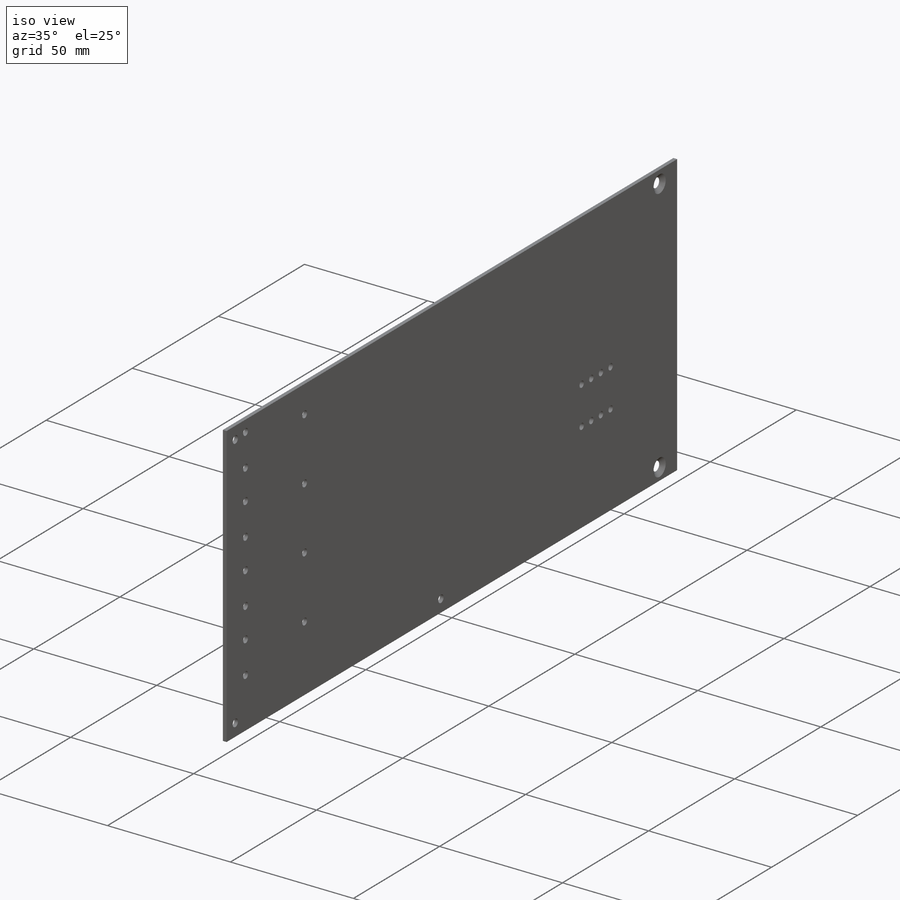
[diagram: iso view]
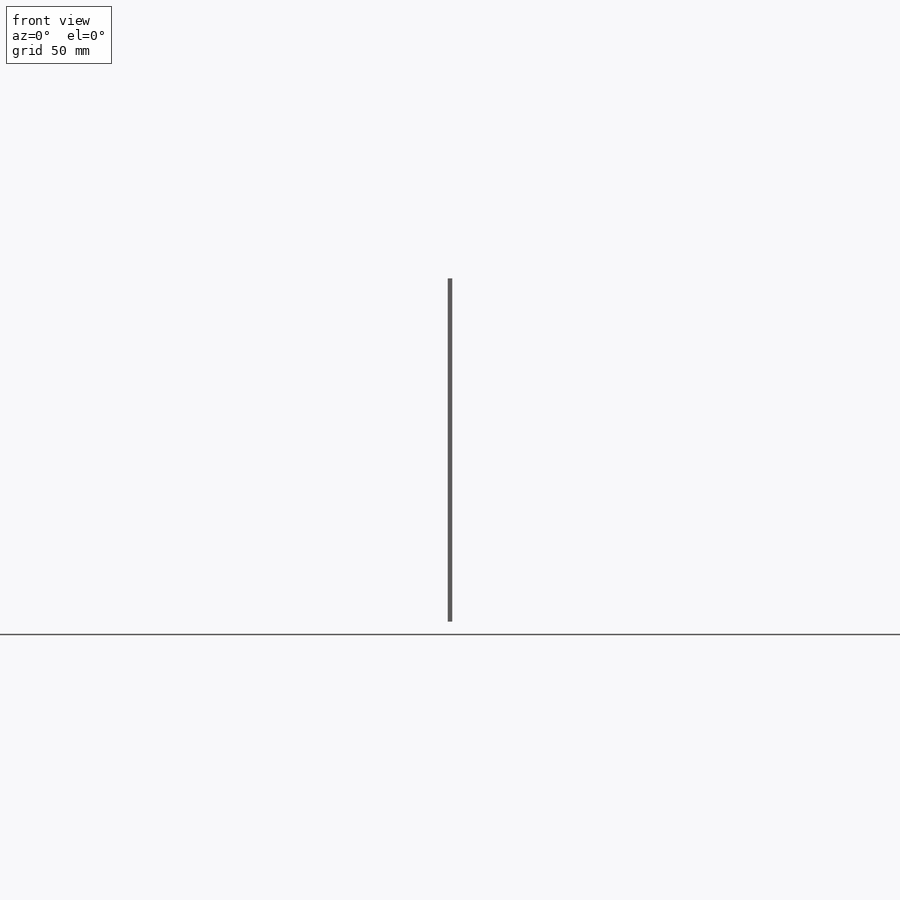
[diagram: front view]
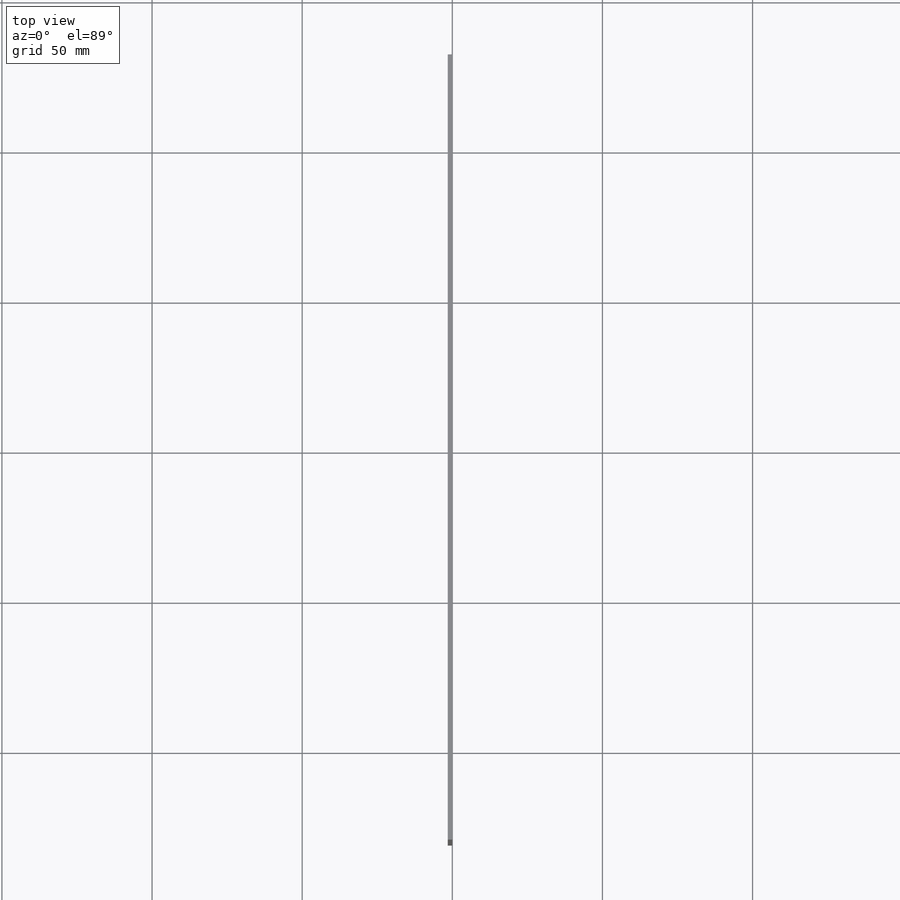
[diagram: top view]
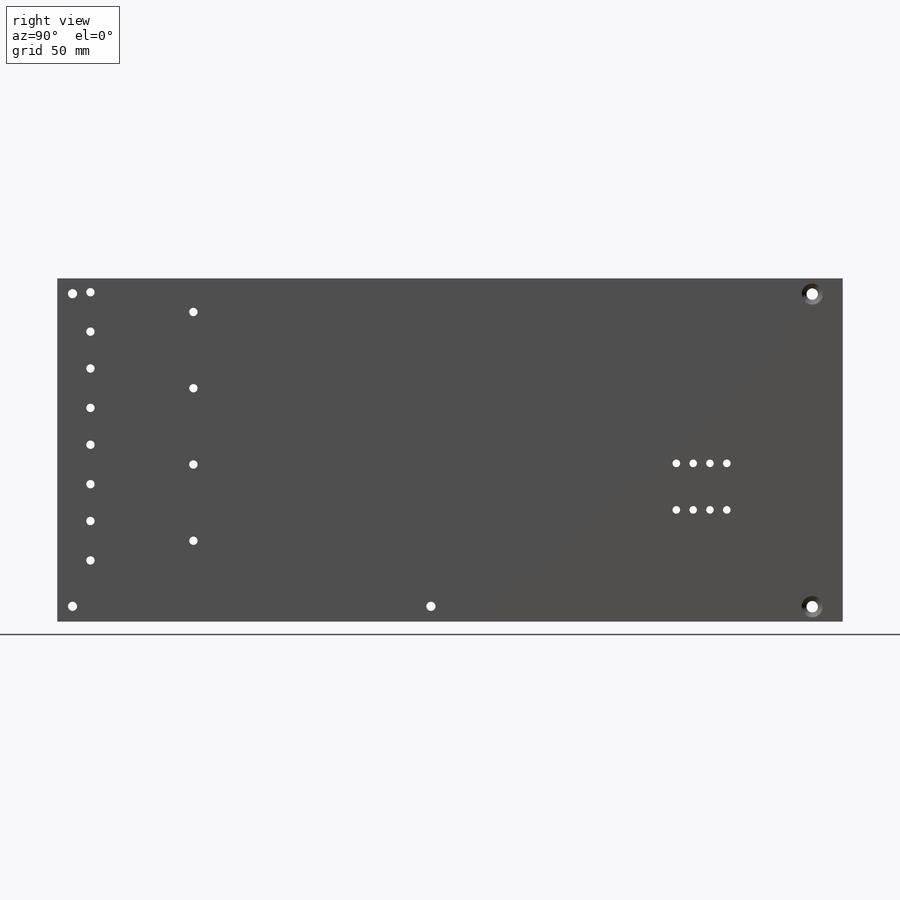
[diagram: right view]
SOLIDWORKS PART (.sldprt)
format: sldprt  version: not decoded by parser v0  size: 1,134,592 bytes
history: native  units: mm
features: sketch x11, hole x4, material x1, extrude x1, plane x1 (+11 scaffold rows collapsed)
feature tree (29):
  scaffold x11  (default folders/planes/origin — collapsed)
  material  "Material <not specified>"
  sketch  "Sketch1"  dims[D1=114.3mm D2=57.15mm D3=1.524mm]
  extrude  "Boss-Extrude1"  Depth=261.62mm
  plane  "Plane1"  Offset=57.15mm
  sketch  "from pixel-mtbd-v2_100512.dxf"
  sketch  "Sketch2"  dims[D1=104.14mm D2=10.16mm D3=0.127mm]
  hole  "CSK for #6 Flat Head Machine Screw (100)1"  Diameter=3.7973mm Depth=1.524mm
  sketch  "Sketch4"
  sketch  "Sketch3"  dims[hole-wizard template sketch: 55 standard entries collapsed; hole parameters kept: c17.Thru Hole Depth=1.524mm c17.Near C'Sink Dia.=~7.086611mm c17.D4=~3.666174mm c17.Near C'Sink Angle=100.0deg]
  hole  "7/64 (0.10938) Diameter Hole1"  Diameter=2.778252mm Depth=1.524mm
  sketch  "Sketch7"
  sketch  "Sketch8"  dims[hole-wizard template sketch: 59 standard entries collapsed; hole parameters kept: c18.Thru Hole Dia.=~2.778252mm c18.Thru Hole Depth=1.524mm]
  hole  "#31 (0.12) Diameter Hole1"  Diameter=3.048mm Depth=1.524mm
  sketch  "Sketch10"
  sketch  "Sketch9"  dims[hole-wizard template sketch: 60 standard entries collapsed; hole parameters kept: c18.Thru Hole Depth=1.524mm]
  hole  "#39 (0.0995) Diameter Hole1"  Diameter=2.5273mm Depth=6.35mm
  sketch  "Sketch12"
  sketch  "Sketch11"  dims[hole-wizard template sketch: 47 standard entries collapsed; hole parameters kept: c15.Hole Depth=6.35mm c15.D3=~14.816244mm c15.Drill Angle=90.0deg]
decode coverage: 11 of 16 modeling features carry decoded parameters
note: ~ marks probable driven/reference dimensions
summary: Diameter pulled from absorbed wizard sketch
note: suppression state not decoded; provenance and decode notes live in map.json
